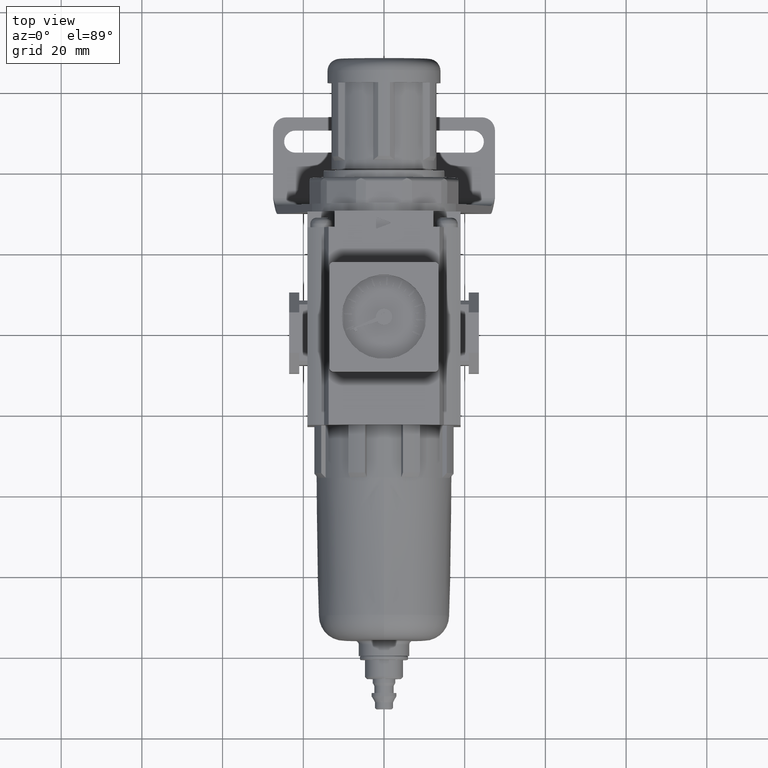
[diagram: clean part render]
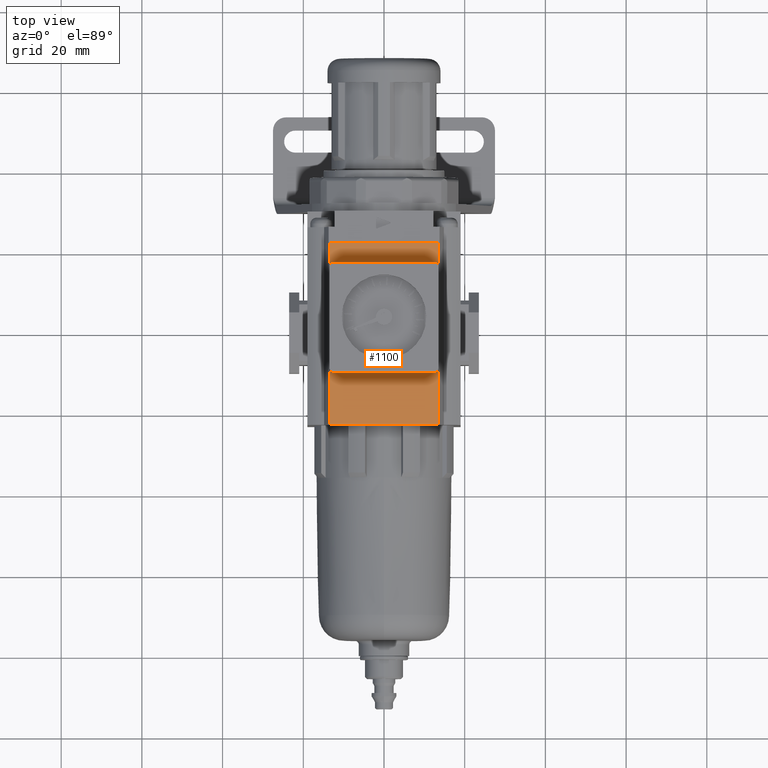
[diagram: same view with one face highlighted and labeled with its STEP entity id]
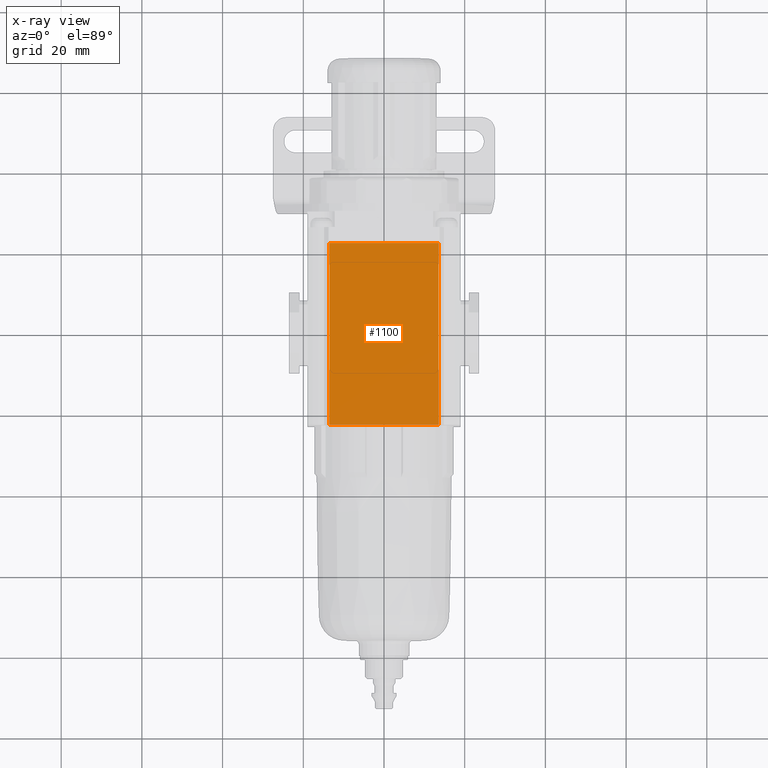
[diagram: x-ray of the same camera — body ghosted, the highlighted face saturated]
A machine part, top view. The second image highlights one B-rep face of the part: STEP entity #1100.
The next image is the same camera in x-ray: the body ghosted, the highlighted face saturated — about 0% of this face is hidden behind the body in this view.
In plain terms, the highlighted planar face has unit normal (0, -0, 1).
Its self-contained STEP definition (entity closure, byte-faithful):
#20 = VERTEX_POINT ( 'NONE', #5172 ) ;
#266 = ORIENTED_EDGE ( 'NONE', *, *, #10184, .T. ) ;
#327 = VERTEX_POINT ( 'NONE', #4786 ) ;
#397 = EDGE_CURVE ( 'NONE', #327, #10897, #8126, .T. ) ;
#1100 = ADVANCED_FACE ( 'NONE', ( #13876 ), #6393, .T. ) ;
#1953 = VERTEX_POINT ( 'NONE', #6713 ) ;
#3906 = DIRECTION ( 'NONE',  ( 1.000000000000000000, 0.0000000000000000000, -0.0000000000000000000 ) ) ;
#4469 = DIRECTION ( 'NONE',  ( 9.130123557772672000E-017, -1.000000000000000000, -0.0000000000000000000 ) ) ;
#4786 = CARTESIAN_POINT ( 'NONE',  ( -13.53993773853709500, -23.00000000000000700, 20.00000000000000000 ) ) ;
#5027 = CARTESIAN_POINT ( 'NONE',  ( 13.53993773853709800, -1.301042606982605300E-015, 20.00000000000000000 ) ) ;
#5136 = VECTOR ( 'NONE', #4469, 1000.000000000000000 ) ;
#5172 = CARTESIAN_POINT ( 'NONE',  ( -13.53993773853710000, 21.99999999999999300, 20.00000000000000000 ) ) ;
#6237 = DIRECTION ( 'NONE',  ( 1.000000000000000000, -0.0000000000000000000, -0.0000000000000000000 ) ) ;
#6309 = CARTESIAN_POINT ( 'NONE',  ( 13.53993773853709600, -23.00000000000000700, 20.00000000000000000 ) ) ;
#6393 = PLANE ( 'NONE',  #11938 ) ;
#6713 = CARTESIAN_POINT ( 'NONE',  ( 13.53993773853710000, 21.99999999999999300, 20.00000000000000000 ) ) ;
#7110 = LINE ( 'NONE', #5027, #10527 ) ;
#7666 = CARTESIAN_POINT ( 'NONE',  ( 0.0000000000000000000, 0.0000000000000000000, 20.00000000000000000 ) ) ;
#8110 = LINE ( 'NONE', #12095, #5136 ) ;
#8118 = EDGE_CURVE ( 'NONE', #10897, #1953, #7110, .T. ) ;
#8126 = LINE ( 'NONE', #13852, #14487 ) ;
#10184 = EDGE_CURVE ( 'NONE', #20, #327, #8110, .T. ) ;
#10527 = VECTOR ( 'NONE', #12666, 1000.000000000000000 ) ;
#10897 = VERTEX_POINT ( 'NONE', #6309 ) ;
#10980 = LINE ( 'NONE', #11098, #14744 ) ;
#11098 = CARTESIAN_POINT ( 'NONE',  ( 0.0000000000000000000, 21.99999999999999300, 20.00000000000000000 ) ) ;
#11512 = DIRECTION ( 'NONE',  ( 0.0000000000000000000, -0.0000000000000000000, 1.000000000000000000 ) ) ;
#11938 = AXIS2_PLACEMENT_3D ( 'NONE', #7666, #11512, #3906 ) ;
#12095 = CARTESIAN_POINT ( 'NONE',  ( -13.53993773853709600, -23.00000000000000700, 20.00000000000000000 ) ) ;
#12666 = DIRECTION ( 'NONE',  ( 9.130123557772672000E-017, 1.000000000000000000, 0.0000000000000000000 ) ) ;
#13852 = CARTESIAN_POINT ( 'NONE',  ( 18.99999999999999600, -23.00000000000000700, 20.00000000000000000 ) ) ;
#13876 = FACE_OUTER_BOUND ( 'NONE', #14836, .T. ) ;
#14487 = VECTOR ( 'NONE', #6237, 1000.000000000000000 ) ;
#14629 = ORIENTED_EDGE ( 'NONE', *, *, #8118, .T. ) ;
#14744 = VECTOR ( 'NONE', #16156, 1000.000000000000000 ) ;
#14825 = EDGE_CURVE ( 'NONE', #1953, #20, #10980, .T. ) ;
#14836 = EDGE_LOOP ( 'NONE', ( #14629, #15508, #266, #15185 ) ) ;
#15185 = ORIENTED_EDGE ( 'NONE', *, *, #397, .T. ) ;
#15508 = ORIENTED_EDGE ( 'NONE', *, *, #14825, .T. ) ;
#16156 = DIRECTION ( 'NONE',  ( -1.000000000000000000, 0.0000000000000000000, 0.0000000000000000000 ) ) ;